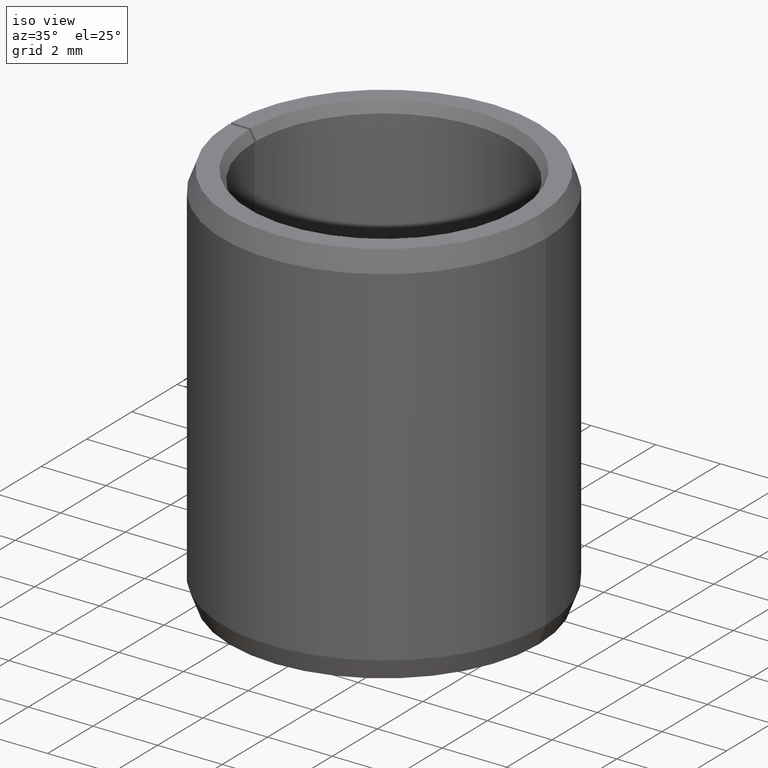
[diagram: clean part render]
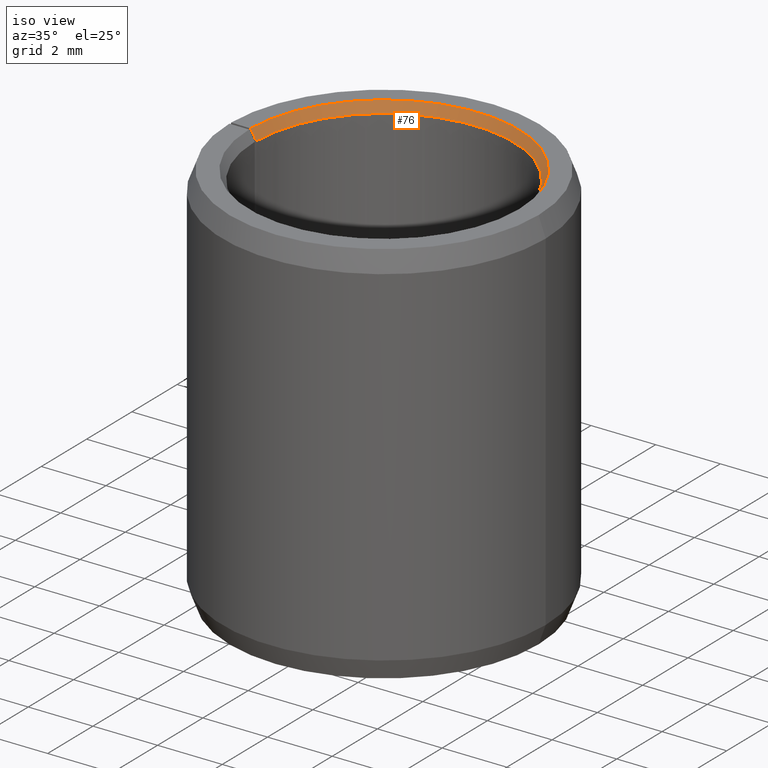
[diagram: same view with one face highlighted and labeled with its STEP entity id]
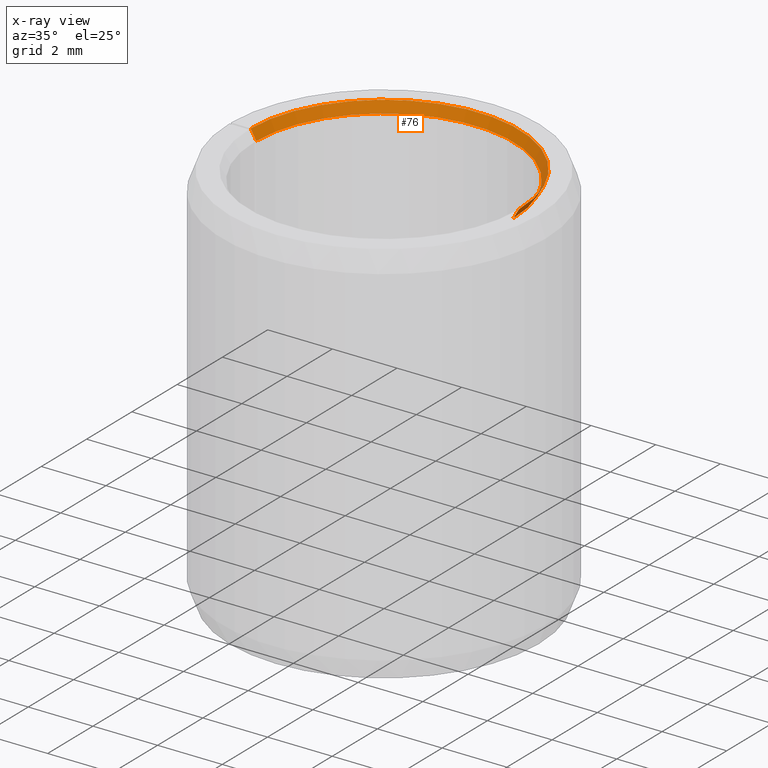
[diagram: x-ray of the same camera — body ghosted, the highlighted face saturated]
A machine part, iso view. The second image highlights one B-rep face of the part: STEP entity #76.
The next image is the same camera in x-ray: the body ghosted, the highlighted face saturated — about 0% of this face is hidden behind the body in this view.
In plain terms, the highlighted conical surface has half-angle 30 deg.
Its self-contained STEP definition (entity closure, byte-faithful):
#76=ADVANCED_FACE('',(#94),#95,.F.);
#94=FACE_OUTER_BOUND('',#126,.T.);
#95=CONICAL_SURFACE('',#127,4.08660254037844,0.523598775598295);
#126=EDGE_LOOP('',(#163,#164,#165,#166));
#127=AXIS2_PLACEMENT_3D('',#167,#168,#169);
#163=ORIENTED_EDGE('',*,*,#284,.F.);
#164=ORIENTED_EDGE('',*,*,#285,.T.);
#165=ORIENTED_EDGE('',*,*,#286,.T.);
#166=ORIENTED_EDGE('',*,*,#281,.F.);
#167=CARTESIAN_POINT('',(6.85548500631418E-015,-7.26112259874141E-015,11.85));
#168=DIRECTION('',(5.48707263966375E-016,-6.09939603923743E-016,1.0));
#169=DIRECTION('',(-1.0,1.89882151931499E-015,5.48707263966376E-016));
#281=EDGE_CURVE('',#318,#321,#322,.T.);
#284=EDGE_CURVE('',#326,#318,#327,.T.);
#285=EDGE_CURVE('',#326,#328,#329,.T.);
#286=EDGE_CURVE('',#328,#321,#330,.T.);
#318=VERTEX_POINT('',#380);
#321=VERTEX_POINT('',#384);
#322=CIRCLE('',#385,4.0);
#326=VERTEX_POINT('',#390);
#327=LINE('',#391,#392);
#328=VERTEX_POINT('',#393);
#329=CIRCLE('',#394,4.17320508075689);
#330=LINE('',#395,#396);
#380=CARTESIAN_POINT('',(4.00000000000001,-1.52547764550717E-014,11.7));
#384=CARTESIAN_POINT('',(-3.99939078062556,0.0698096257491338,11.7));
#385=AXIS2_PLACEMENT_3D('',#465,#466,#467);
#390=CARTESIAN_POINT('',(4.17320508075689,-1.57878553756192E-014,12.0));
#391=CARTESIAN_POINT('',(4.08660254037845,-1.55213159153455E-014,11.85));
#392=VECTOR('',#472,1.0);
#393=CARTESIAN_POINT('',(-4.17256948140971,0.0728324712155055,12.0));
#394=AXIS2_PLACEMENT_3D('',#473,#474,#475);
#395=CARTESIAN_POINT('',(-4.17256948140971,0.0728324712155055,12.0));
#396=VECTOR('',#476,10.0);
#465=CARTESIAN_POINT('',(6.77317891671922E-015,-7.17881650914645E-015,11.7));
#466=DIRECTION('',(5.48707263966375E-016,-6.09939603923743E-016,1.0));
#467=DIRECTION('',(-1.0,1.89882151931499E-015,5.48707263966376E-016));
#472=DIRECTION('',(-0.499999999999997,1.53886629138704E-015,-0.86602540378444));
#473=CARTESIAN_POINT('',(6.93779109590913E-015,-7.34342868833636E-015,12.0));
#474=DIRECTION('',(5.48707263966375E-016,-6.09939603923743E-016,1.0));
#475=DIRECTION('',(-1.0,1.89882151931499E-015,5.48707263966376E-016));
#476=DIRECTION('',(0.499923847578192,-0.00872620321864206,-0.866025403784441));